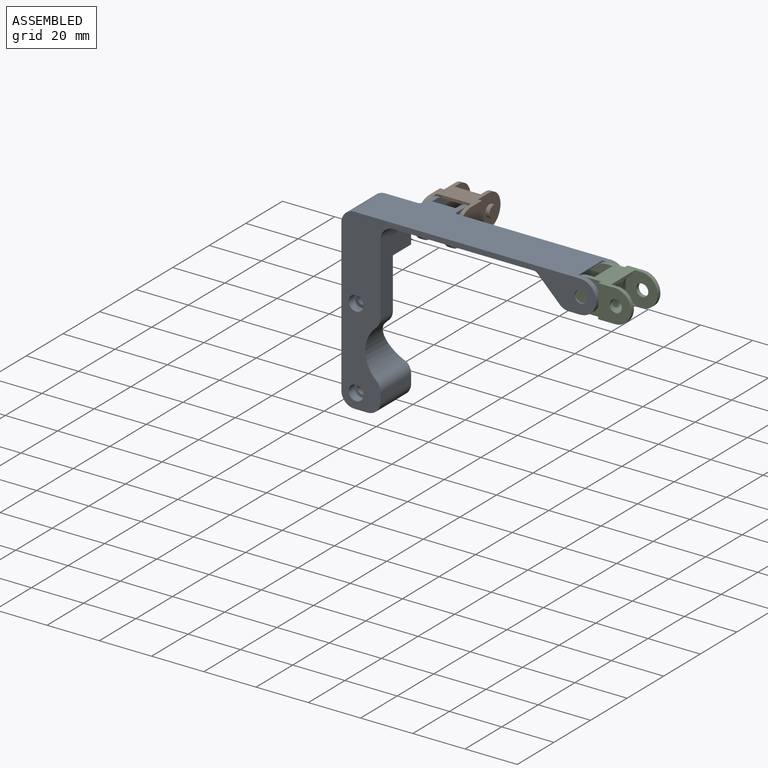
[diagram: assembled view]
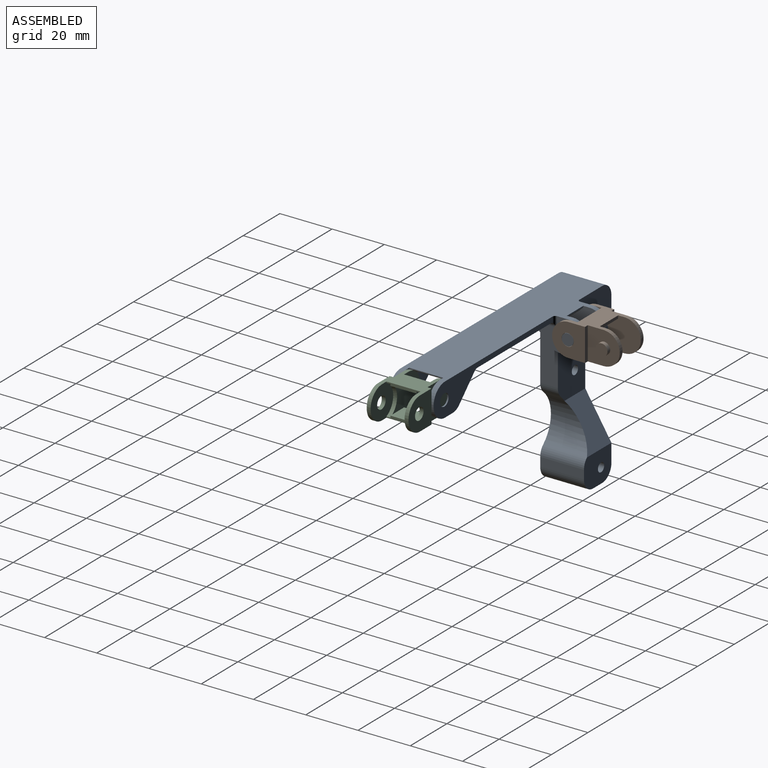
[diagram: assembled view, second angle]
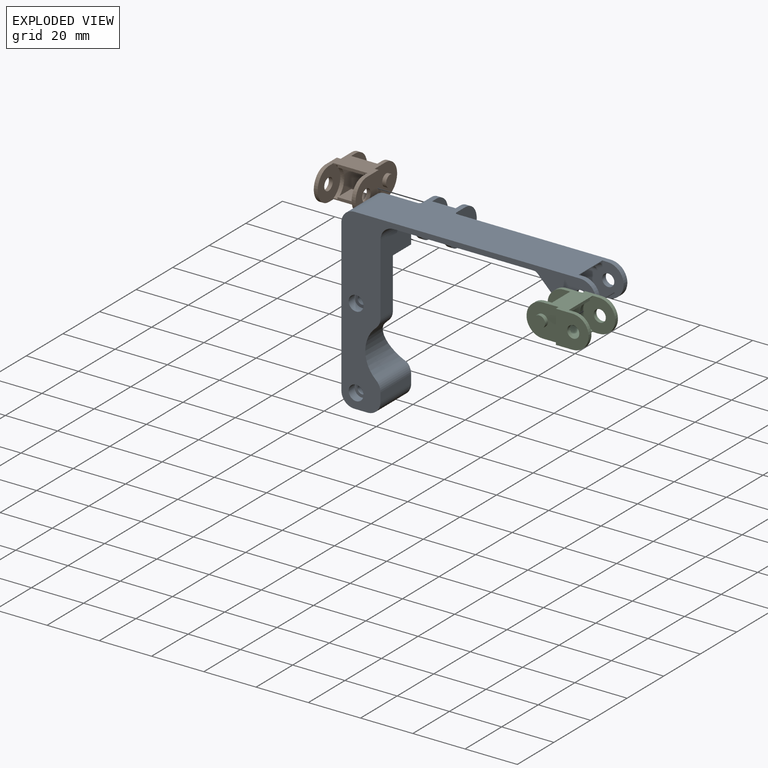
[diagram: exploded view]
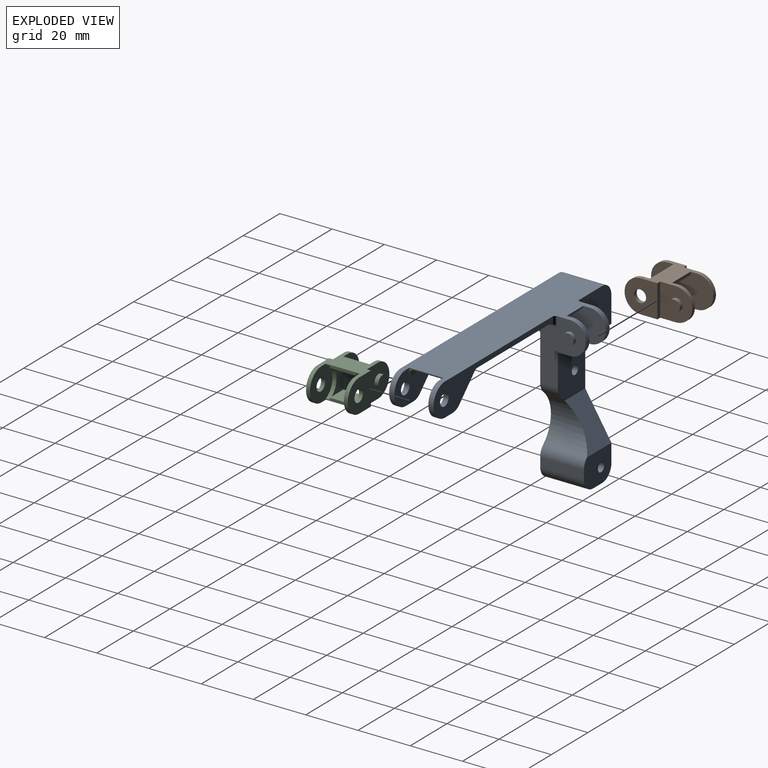
[diagram: exploded view, second angle]
ASSEMBLY  parts=3 mates=4
PART A: 75 faces, bbox 98.3x29.7x69 mm
  f0: plane 2x2mm, normal (0,1,0), area 0.9mm2, adj f2,f54,f60
  f1: plane 2x2mm, normal (0,1,0), area 0.9mm2, adj f2,f53,f55
  f2: plane 66.74x18.85mm, normal (0,0,-1), area 949.3mm2, adj f0,f1,f3,f45,f51,f52,f53,f54
  f3: cylinder r=5mm len=16.79mm, axis (0,-1,0), area 105.8mm2, adj f2,f6,f12,f52,f56,f72,f74
  f4: plane 86.33x22.78mm, normal (0,0,1), area 1493mm2, adj f12,f23,f27,f28,f31,f33,f34,f37
  f5: plane 58.15x16.75mm, normal (-1,0,0), area 643.3mm2, adj f7,f12,f18,f19,f20,f23,f24,f52
  f6: plane 27.17x16.75mm, normal (1,0,0), area 263.4mm2, adj f3,f12,f19,f20,f21,f52
  f7: plane 15x12mm, normal (0,1,0), area 158.4mm2, adj f5,f10,f11,f15,f18,f22,f24,f25
  f8: cylinder r=1.7mm len=3.5mm, axis (0,-1,0), area 37.4mm2, adj f13,f19
  f9: cylinder r=12mm len=18.12mm, axis (0,-1,0), area 226.8mm2, adj f18,f19,f21,f22,f52
  f10: plane 16.75x3.32mm, normal (1,0,0), area 55.6mm2, adj f7,f22,f25,f52
  f11: plane 16.75x5mm, normal (0,0,-1), area 83.8mm2, adj f7,f24,f25,f52
  f12: plane 17.5x15mm, normal (0,1,0), area 229.5mm2, adj f3,f4,f5,f6,f20,f23,f72
  f13: plane 5.72x5.72mm, normal (0,-1,0), area 16.6mm2, adj f8,f14
  f14: cylinder r=2.86mm len=5.72mm, axis (0,-1,0), area 58.4mm2, adj f13,f52
  f15: cylinder r=1.7mm len=13.5mm, axis (0,-1,0), area 144.2mm2, adj f7,f16
  f16: plane 5.72x5.72mm, normal (0,-1,0), area 16.6mm2, adj f15,f17
  f17: cylinder r=2.86mm len=5.72mm, axis (0,-1,0), area 58.4mm2, adj f16,f52
  f18: plane 16.85x14.08mm, normal (0,0.85,0.53), area 193.7mm2, adj f5,f7,f9,f19,f22
  f19: plane 25x15mm, normal (0,1,0), area 358.3mm2, adj f5,f6,f8,f9,f18,f20,f21
  f20: plane 15x10mm, normal (0,0,-1), area 150mm2, adj f5,f6,f12,f19
  f21: cylinder r=5mm len=6.75mm, axis (0,-1,0), area 28.9mm2, adj f6,f9,f19,f52
  f22: cylinder r=5mm len=16.75mm, axis (0,-1,0), area 71.6mm2, adj f7,f9,f10,f18,f52
  f23: cylinder r=5mm len=16.75mm, axis (0,-1,0), area 131.6mm2, adj f4,f5,f12,f52
  f24: cylinder r=5mm len=16.75mm, axis (0,1,0), area 131.6mm2, adj f5,f7,f11,f52
  f25: cylinder r=5mm len=16.75mm, axis (0,1,0), area 131.6mm2, adj f7,f10,f11,f52
  f26: plane 3.95x2mm, normal (0,0,-1), area 7.9mm2, adj f27,f28,f53,f70
  f27: cylinder r=6.25mm len=12.5mm, axis (-1,0,0), area 39.3mm2, adj f4,f26,f28,f53
  f28: plane 21.81x12.5mm, normal (-1,0,0), area 162.7mm2, adj f4,f26,f27,f29,f49,f56,f70,f72
  f29: cylinder r=2.25mm len=4.5mm, axis (1,0,0), area 21.2mm2, adj f28,f30
  f30: plane 4.5x4.5mm, normal (-1,0,0), area 15.9mm2, adj f29
  f31: plane 9x0.5mm, normal (0,1,0), area 4.5mm2, adj f4,f53,f54,f73
  f32: plane 3.95x2mm, normal (0,0,-1), area 7.9mm2, adj f33,f34,f54,f67
  f33: cylinder r=6.25mm len=12.5mm, axis (1,0,0), area 39.3mm2, adj f4,f32,f34,f54
  f34: plane 20.78x12.5mm, normal (1,0,0), area 151.4mm2, adj f4,f32,f33,f35,f50,f58,f67,f71
  f35: cylinder r=2.25mm len=4.5mm, axis (-1,0,0), area 21.2mm2, adj f34,f36
  f36: plane 4.5x4.5mm, normal (1,0,0), area 15.9mm2, adj f35
  f37: plane 21.08x12.5mm, normal (0,1,0), area 142.9mm2, adj f4,f38,f39,f40,f46,f48,f64,f65
  f38: plane 4.25x2mm, normal (0,0,-1), area 8.5mm2, adj f37,f39,f52,f69
  f39: cylinder r=6.25mm len=12.5mm, axis (0,1,0), area 39.3mm2, adj f4,f37,f38,f52
  f40: cylinder r=2.32mm len=4.65mm, axis (0,1,0), area 29.2mm2, adj f37,f52
  f41: plane 21.08x12.5mm, normal (0,-1,0), area 142.9mm2, adj f4,f42,f43,f44,f46,f47,f61,f62
  f42: plane 4.25x2mm, normal (0,0,-1), area 8.5mm2, adj f41,f43,f51,f68
  f43: cylinder r=6.25mm len=12.5mm, axis (0,-1,0), area 39.3mm2, adj f4,f41,f42,f51
  f44: cylinder r=2.32mm len=4.65mm, axis (0,-1,0), area 29.2mm2, adj f41,f51
  f45: cylinder r=6.25mm len=9mm, axis (0,1,0), area 28.8mm2, adj f2,f46,f61,f64
  f46: plane 13.49x2.94mm, normal (1,0,0), area 5.7mm2, adj f4,f37,f41,f45,f61,f64
  f47: plane 8.57x8.57mm, normal (-0.71,0,-0.71), area 24.3mm2, adj f41,f51,f62,f63,f68
  f48: plane 8.57x8.57mm, normal (-0.71,0,-0.71), area 24.3mm2, adj f37,f52,f65,f66,f69
  f49: plane 8.57x8.57mm, normal (0,-0.71,-0.71), area 24mm2, adj f28,f53,f55,f56,f57,f70
  f50: plane 8.57x8.57mm, normal (0,-0.71,-0.71), area 24.6mm2, adj f34,f54,f58,f59,f60,f67
  f51: plane 65.08x12.5mm, normal (0,1,0), area 283.2mm2, adj f2,f4,f42,f43,f44,f47,f58,f63
  f52: plane 97.58x68.15mm, normal (0,-1,0), area 1191.2mm2, adj f2,f3,f4,f5,f6,f9,f10,f11
  f53: plane 20.78x12.5mm, normal (1,0,0), area 166.2mm2, adj f1,f2,f4,f26,f27,f31,f49,f55
  f54: plane 20.78x12.5mm, normal (-1,0,0), area 166.2mm2, adj f0,f2,f4,f31,f32,f33,f50,f60
  f55: cylinder r=2mm len=11.33mm, axis (0,-1,0), area 31.1mm2, adj f1,f2,f49,f53,f57
  f56: bspline ~2.5x1.82mm, area 3.1mm2, adj f3,f28,f49,f57,f74
  f57: cylinder r=2mm len=2.5mm, axis (-1,0,0), area 2.8mm2, adj f2,f49,f55,f56
  f58: cylinder r=2mm len=12.58mm, axis (0,1,0), area 33mm2, adj f2,f34,f50,f51,f59,f71
  f59: cylinder r=2mm len=6mm, axis (1,0,0), area 7.2mm2, adj f2,f50,f58,f60
  f60: cylinder r=2mm len=11.33mm, axis (0,1,0), area 31.1mm2, adj f0,f2,f50,f54,f59
  f61: torus R=4.25mm, axis (0,1,0), area 9.2mm2, adj f41,f45,f46,f62
  f62: cylinder r=2mm len=14.05mm, axis (1,0,0), area 38.2mm2, adj f2,f41,f47,f61,f63
  f63: cylinder r=2mm len=4mm, axis (0,1,0), area 5.2mm2, adj f2,f47,f51,f62
  f64: torus R=4.25mm, axis (0,-1,0), area 9.2mm2, adj f37,f45,f46,f65
  f65: cylinder r=2mm len=14.05mm, axis (1,0,0), area 38.2mm2, adj f2,f37,f48,f64,f66
  f66: cylinder r=2mm len=4mm, axis (0,1,0), area 5.2mm2, adj f2,f48,f52,f65
  f67: cylinder r=5mm len=3.54mm, axis (1,0,0), area 7.9mm2, adj f32,f34,f50,f54
  f68: cylinder r=5mm len=3.54mm, axis (0,-1,0), area 7.9mm2, adj f41,f42,f47,f51
  f69: cylinder r=5mm len=3.54mm, axis (0,1,0), area 7.9mm2, adj f37,f38,f48,f52
  f70: cylinder r=5mm len=3.54mm, axis (-1,0,0), area 7.9mm2, adj f26,f28,f49,f53
  f71: cylinder r=1mm len=4mm, axis (0,0,1), area 4.9mm2, adj f4,f34,f51,f58
  f72: cylinder r=1mm len=2.97mm, axis (0,0,1), area 4.1mm2, adj f3,f4,f12,f28,f74
  f73: plane 9x1.5mm, normal (0,0.71,-0.71), area 19.1mm2, adj f2,f31,f53,f54
  f74: cylinder r=0.5mm len=12.02mm, axis (0,-1,0), area 11mm2, adj f3,f28,f56,f72
PART B: 34 faces, bbox 24.9x16x12.5 mm
  f0: cylinder r=2.25mm len=4.5mm, axis (0,1,0), area 21.2mm2, adj f12,f13
  f1: cylinder r=2.25mm len=4.5mm, axis (0,1,0), area 21.2mm2, adj f11,f18
  f2: cylinder r=2.32mm len=4.65mm, axis (0,1,0), area 21.9mm2, adj f16,f21
  f3: cylinder r=2.32mm len=4.65mm, axis (0,1,0), area 21.9mm2, adj f22,f33
  f4: cylinder r=6.45mm len=11.67mm, axis (0,1,0), area 21.9mm2, adj f8,f9,f10,f22,f23,f26
  f5: cylinder r=6.45mm len=11.67mm, axis (0,1,0), area 21.9mm2, adj f6,f7,f8,f21,f23,f30
  f6: plane 1.13x0.68mm, normal (0,1,0), area 0.4mm2, adj f5,f8,f27
  f7: plane 1.13x0.68mm, normal (0,1,0), area 0.4mm2, adj f5,f23,f31
  f8: plane 13x1.1mm, normal (1,0,0), area 12.2mm2, adj f4,f5,f6,f10,f15,f21,f22,f27
  f9: plane 1.13x0.68mm, normal (0,-1,0), area 0.4mm2, adj f4,f23,f31
  f10: plane 1.13x0.68mm, normal (0,-1,0), area 0.4mm2, adj f4,f8,f27
  f11: plane 4.5x4.5mm, normal (0,-1,0), area 15.9mm2, adj f1
  f12: plane 4.5x4.5mm, normal (0,1,0), area 15.9mm2, adj f0
  f13: plane 12.5x12.28mm, normal (0,1,0), area 120.8mm2, adj f0,f14,f15,f17,f32
  f14: plane 12.5x1.5mm, normal (-1,0,0), area 18.8mm2, adj f13,f15,f16,f17
  f15: plane 16x12.35mm, normal (0,0,-1), area 123.7mm2, adj f8,f13,f14,f16,f18,f19,f20,f21
  f16: plane 12.58x12.5mm, normal (0,1,0), area 123.4mm2, adj f2,f14,f15,f17,f25
  f17: plane 16x12.35mm, normal (0,0,1), area 123.7mm2, adj f13,f14,f16,f18,f19,f20,f21,f22
  f18: plane 12.5x12.28mm, normal (0,-1,0), area 120.8mm2, adj f1,f15,f17,f19,f20
  f19: plane 12.5x1.5mm, normal (-1,0,0), area 18.8mm2, adj f15,f17,f18,f33
  f20: cylinder r=6.25mm len=12.5mm, axis (0,1,0), area 29.5mm2, adj f15,f17,f18,f26
  f21: plane 12.5x12.38mm, normal (0,-1,0), area 105.7mm2, adj f2,f5,f8,f15,f17,f23,f25
  f22: plane 12.5x12.38mm, normal (0,1,0), area 105.7mm2, adj f3,f4,f8,f15,f17,f23,f24
  f23: plane 13x1.1mm, normal (1,0,0), area 12.2mm2, adj f4,f5,f7,f9,f17,f21,f22,f31
  f24: cylinder r=6.25mm len=12.5mm, axis (0,1,0), area 29.5mm2, adj f15,f17,f22,f33
  f25: cylinder r=6.25mm len=12.5mm, axis (0,1,0), area 29.5mm2, adj f15,f16,f17,f21
  f26: plane 15.04x12.5mm, normal (0,1,0), area 138.8mm2, adj f4,f15,f17,f20,f27,f28,f29,f31
  f27: plane 10x7.5mm, normal (0,0,1), area 75mm2, adj f6,f8,f10,f26,f28,f30
  f28: plane 10x1.1mm, normal (-1,0,0), area 11mm2, adj f15,f26,f27,f30
  f29: plane 10x1.1mm, normal (-1,0,0), area 11mm2, adj f17,f26,f30,f31
  f30: plane 15.04x12.5mm, normal (0,-1,0), area 138.8mm2, adj f5,f15,f17,f27,f28,f29,f31,f32
  f31: plane 10x7.5mm, normal (0,0,-1), area 75mm2, adj f7,f9,f23,f26,f29,f30
  f32: cylinder r=6.25mm len=12.5mm, axis (0,1,0), area 29.5mm2, adj f13,f15,f17,f30
  f33: plane 12.58x12.5mm, normal (0,-1,0), area 123.4mm2, adj f3,f15,f17,f19,f24
PART C: same geometry as B
PLACE A rot(axis=(-0.88,-0.48,0),0deg) t=(-54.51,0,-35.61)mm
PLACE B rot(axis=(0,0,-1),90deg) t=(-55.66,-357.65,5.14)mm
PLACE C t=(392.99,-13.25,5.14)mm
MATE cylindrical A.f44 <-> C.f0  axis (0,-1,0) through (15.99,-1.75,5.14)mm
MATE cylindrical A.f29 <-> B.f2  axis (1,0,0) through (-44.16,6.35,5.14)mm
MATE cylindrical C.f0 <-> A.f44  axis (0,-1,0) through (15.99,-14.75,5.14)mm
MATE cylindrical A.f29 <-> B.f2  axis (-1,0,0) through (-57.16,6.35,5.14)mm
